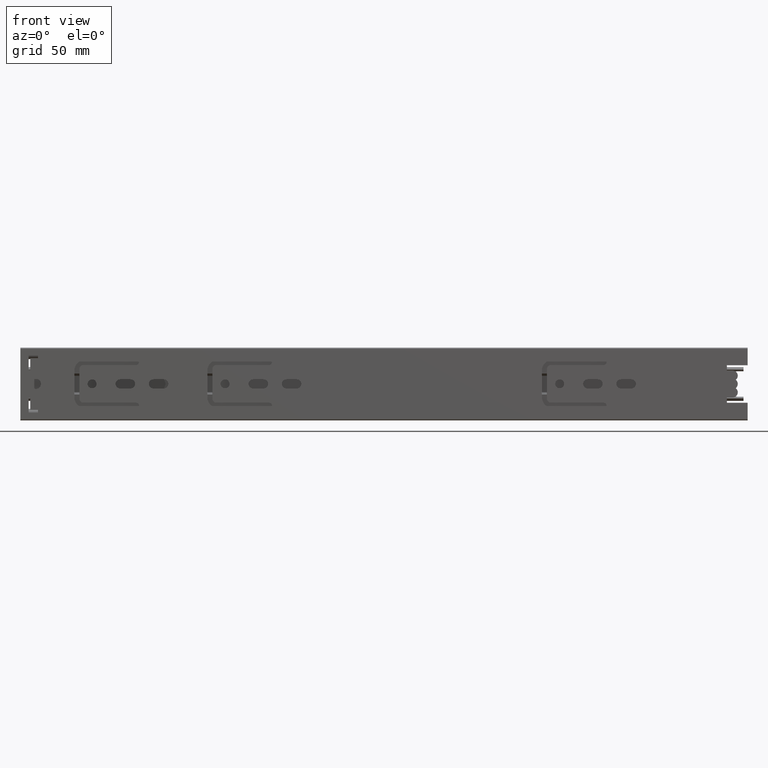
[diagram: clean part render]
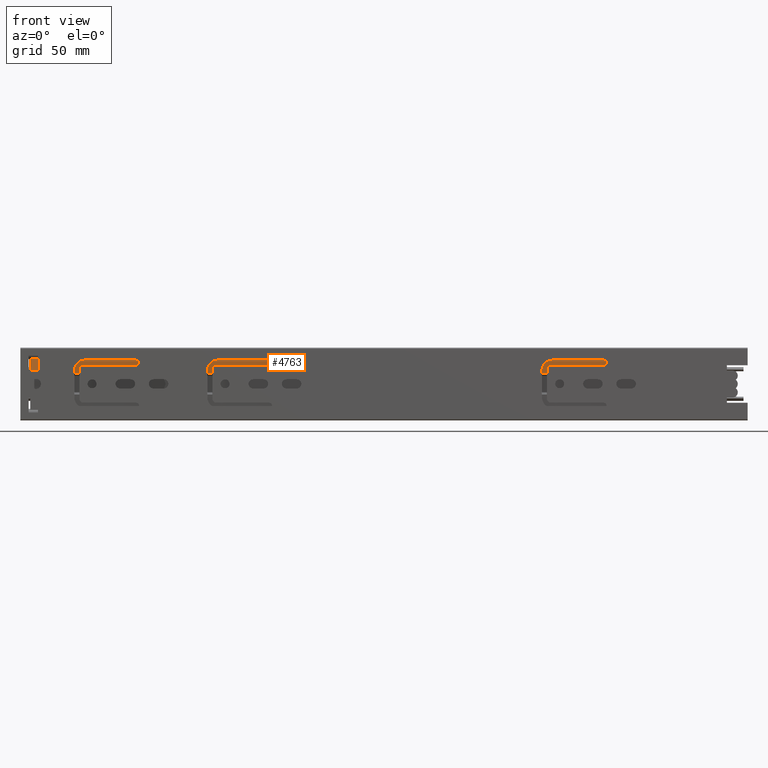
[diagram: same view with one face highlighted and labeled with its STEP entity id]
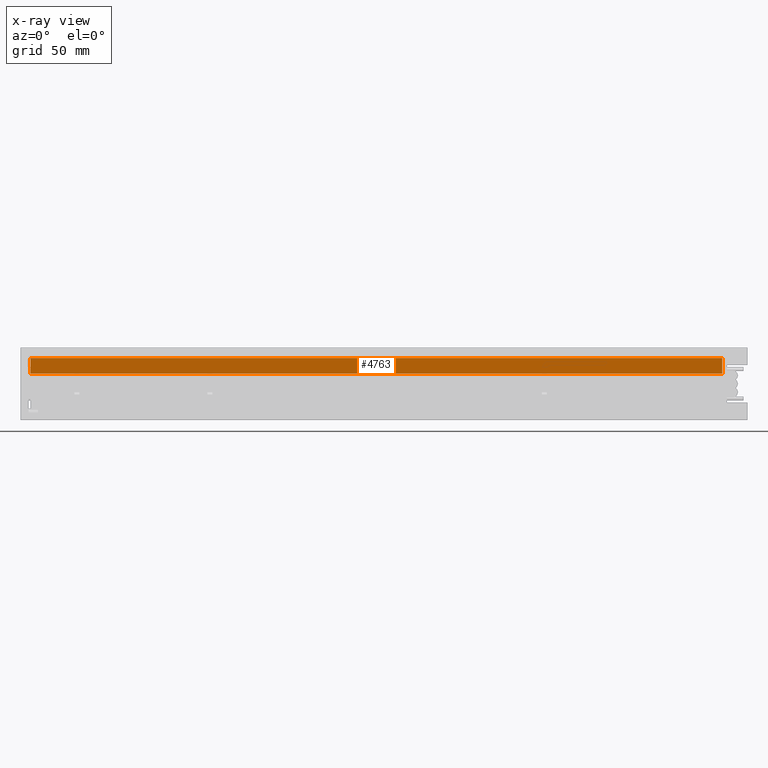
[diagram: x-ray of the same camera — body ghosted, the highlighted face saturated]
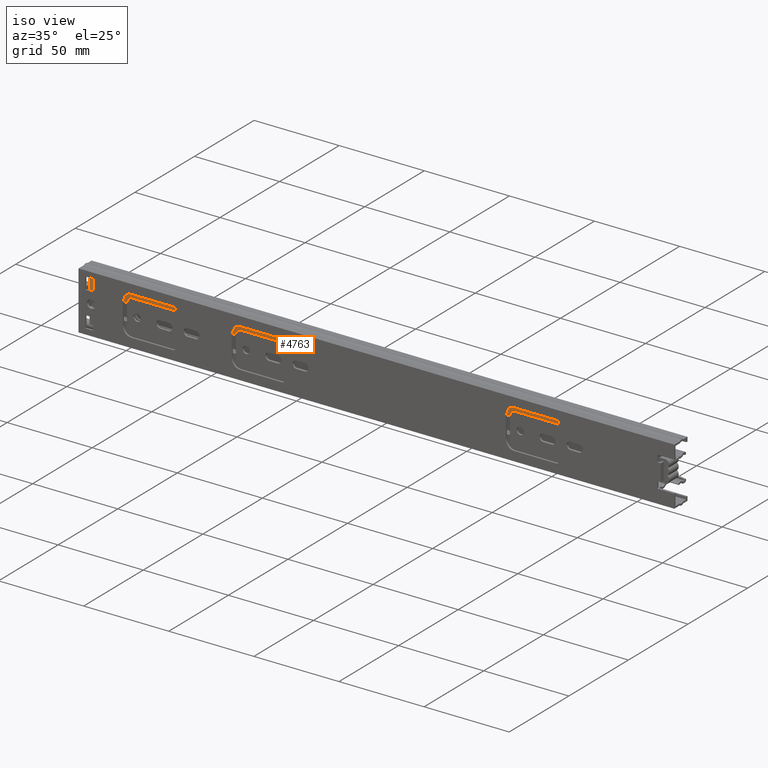
[diagram: same view with one face highlighted and labeled with its STEP entity id]
A machine part, front view. The second image highlights one B-rep face of the part: STEP entity #4763.
The next image is the same camera in x-ray: the body ghosted, the highlighted face saturated — about 0% of this face is hidden behind the body in this view.
A second angle (iso view) of the same face is appended — the face is thin or edge-on in the first view.
In plain terms, the highlighted planar face has unit normal (-0, -1, 0).
Its self-contained STEP definition (entity closure, byte-faithful):
#362=FACE_OUTER_BOUND('',#647,.T.);
#647=EDGE_LOOP('',(#3934,#3935,#3936,#3937));
#1042=LINE('',#7477,#1540);
#1077=LINE('',#7573,#1575);
#1081=LINE('',#7580,#1579);
#1082=LINE('',#7582,#1580);
#1540=VECTOR('',#6080,7.4);
#1575=VECTOR('',#6165,7.4);
#1579=VECTOR('',#6173,333.);
#1580=VECTOR('',#6176,333.);
#2213=VERTEX_POINT('',#7474);
#2214=VERTEX_POINT('',#7476);
#2249=VERTEX_POINT('',#7570);
#2250=VERTEX_POINT('',#7572);
#2797=EDGE_CURVE('',#2213,#2214,#1042,.T.);
#2845=EDGE_CURVE('',#2249,#2250,#1077,.T.);
#2849=EDGE_CURVE('',#2213,#2250,#1081,.T.);
#2850=EDGE_CURVE('',#2214,#2249,#1082,.T.);
#3934=ORIENTED_EDGE('',*,*,#2849,.T.);
#3935=ORIENTED_EDGE('',*,*,#2845,.F.);
#3936=ORIENTED_EDGE('',*,*,#2850,.F.);
#3937=ORIENTED_EDGE('',*,*,#2797,.F.);
#4554=PLANE('',#5140);
#4763=ADVANCED_FACE('',(#362),#4554,.T.);
#5140=AXIS2_PLACEMENT_3D('',#7581,#6174,#6175);
#6080=DIRECTION('',(0.,2.25045207694288E-16,1.));
#6165=DIRECTION('',(0.,-2.25045207694288E-16,-1.));
#6173=DIRECTION('',(1.,0.,0.));
#6174=DIRECTION('center_axis',(0.,-1.,2.25045207694288E-16));
#6175=DIRECTION('ref_axis',(0.,-2.22044604925031E-16,-1.));
#6176=DIRECTION('',(1.,0.,0.));
#7474=CARTESIAN_POINT('',(-166.5,2.50000000000001,5.05));
#7476=CARTESIAN_POINT('',(-166.5,2.50000000000001,12.45));
#7477=CARTESIAN_POINT('',(-166.5,2.50000000000001,12.45));
#7570=CARTESIAN_POINT('',(166.5,2.50000000000001,12.45));
#7572=CARTESIAN_POINT('',(166.5,2.50000000000001,5.05));
#7573=CARTESIAN_POINT('',(166.5,2.50000000000001,12.45));
#7580=CARTESIAN_POINT('',(0.,2.50000000000001,5.05));
#7581=CARTESIAN_POINT('Origin',(0.,2.50000000000001,12.45));
#7582=CARTESIAN_POINT('',(0.,2.50000000000001,12.45));